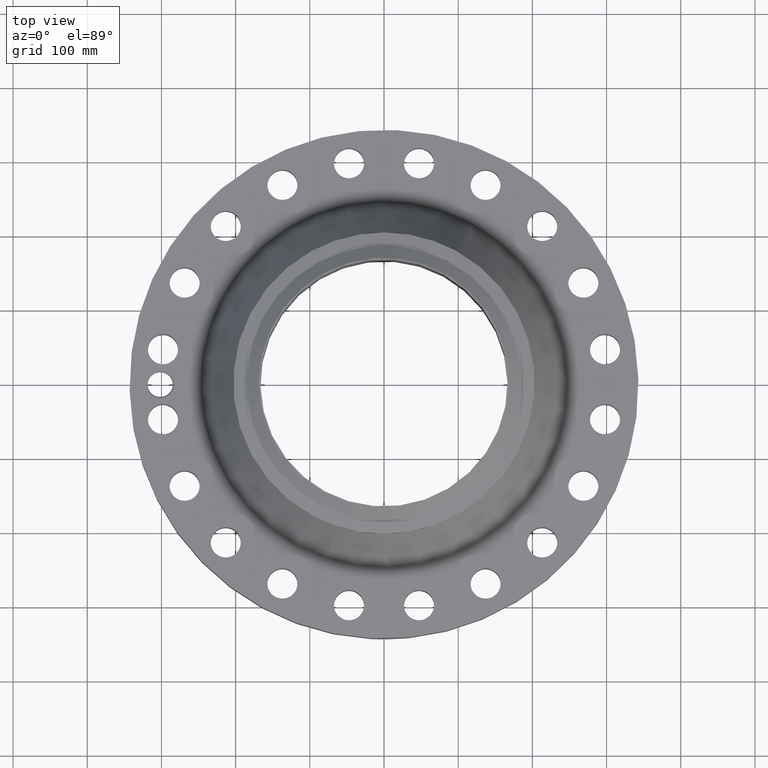
[diagram: clean part render]
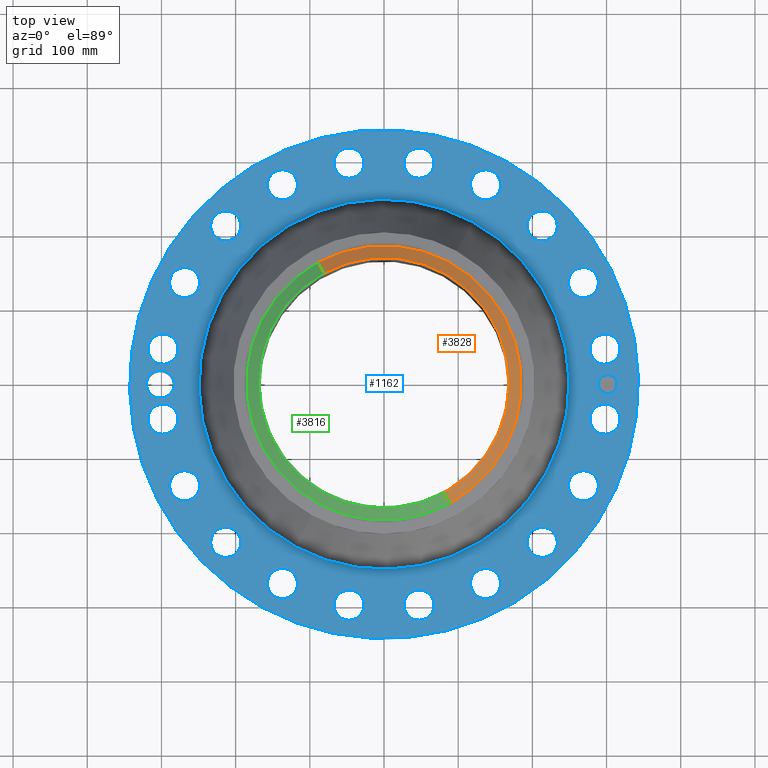
[diagram: same view with three faces highlighted in distinct colors, each labeled with its STEP entity id]
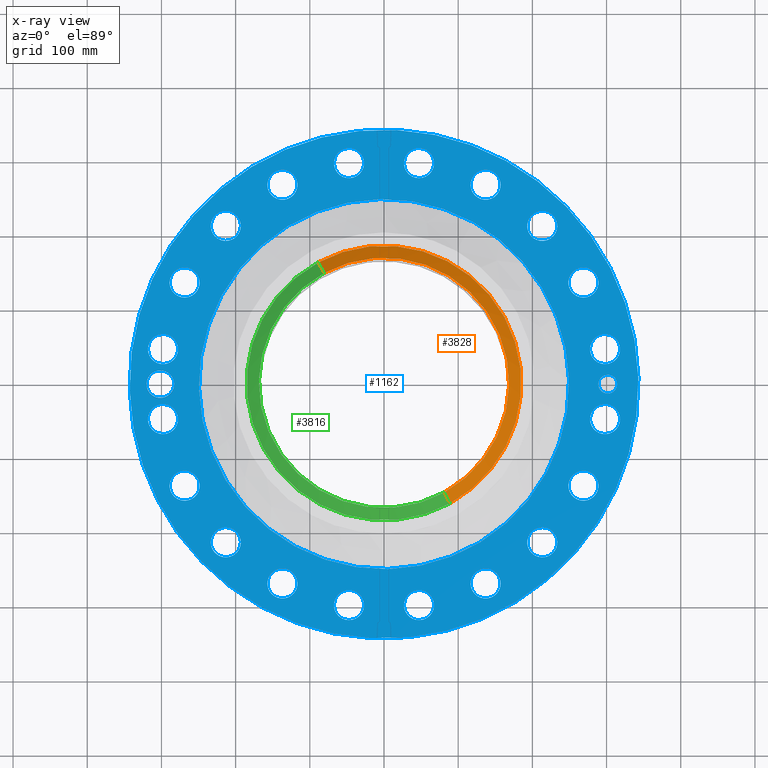
[diagram: x-ray of the same camera — body ghosted, the three highlighted faces saturated]
A machine part, top view with three faces highlighted in distinct colors.
The next image is the same camera in x-ray (body ghosted, the three faces saturated) — at least one of them is partly hidden behind the body in this view.
Their STEP definitions:

[orange] entity #3828 — the highlighted conical surface has half-angle 52.5 deg.
#2956=AXIS2_PLACEMENT_3D('Circle Axis2P3D',#2954,#2955,$) ;
#3789=AXIS2_PLACEMENT_3D('Cone Axis2P3D',#3786,#3787,#3788) ;
#3819=AXIS2_PLACEMENT_3D('Circle Axis2P3D',#3817,#3818,$) ;
#2954=CARTESIAN_POINT('Axis2P3D Location',(0.,0.,7.25000000003)) ;
#2958=CARTESIAN_POINT('Vertex',(3.18374042674,-5.82779776027,7.25000000003)) ;
#2960=CARTESIAN_POINT('Vertex',(-3.18374042674,5.82779776027,7.25000000003)) ;
#3786=CARTESIAN_POINT('Axis2P3D Location',(0.,0.,7.25000000003)) ;
#3791=CARTESIAN_POINT('Line Origine',(-3.33868172929,6.11141591218,7.00201437259)) ;
#3795=CARTESIAN_POINT('Vertex',(-3.49362303184,6.39503406408,6.75402874516)) ;
#3802=CARTESIAN_POINT('Vertex',(3.49362303184,-6.39503406408,6.75402874516)) ;
#3805=CARTESIAN_POINT('Line Origine',(3.33868172929,-6.11141591218,7.00201437259)) ;
#3817=CARTESIAN_POINT('Axis2P3D Location',(0.,0.,6.75402874516)) ;
#2955=DIRECTION('Axis2P3D Direction',(0.,0.,-0.0393700787402)) ;
#3787=DIRECTION('Axis2P3D Direction',(-0.,-0.,-0.0393700787402)) ;
#3788=DIRECTION('Axis2P3D XDirection',(-0.0188750212049,0.0345504945626,0.)) ;
#3792=DIRECTION('Vector Direction',(-0.014974561121,0.02741075027,-0.023966985394)) ;
#3806=DIRECTION('Vector Direction',(0.014974561121,-0.02741075027,-0.023966985394)) ;
#3818=DIRECTION('Axis2P3D Direction',(0.,0.,-0.0393700787402)) ;
#3793=VECTOR('Line Direction',#3792,0.0393700787402) ;
#3807=VECTOR('Line Direction',#3806,0.0393700787402) ;
#3823=ORIENTED_EDGE('',*,*,#2962,.F.) ;
#3824=ORIENTED_EDGE('',*,*,#3809,.T.) ;
#3825=ORIENTED_EDGE('',*,*,#3821,.T.) ;
#3826=ORIENTED_EDGE('',*,*,#3797,.F.) ;
#3828=ADVANCED_FACE('PartBody',(#3827),#3790,.T.) ;
#2957=CIRCLE('generated circle',#2956,6.64074015751) ;
#3820=CIRCLE('generated circle',#3819,7.28710248105) ;
#3790=CONICAL_SURFACE('Cone',#3789,6.64074015751,0.916297857297) ;
#2962=EDGE_CURVE('',#2959,#2961,#2957,.F.) ;
#3797=EDGE_CURVE('',#2961,#3796,#3794,.T.) ;
#3809=EDGE_CURVE('',#2959,#3803,#3808,.T.) ;
#3821=EDGE_CURVE('',#3803,#3796,#3820,.F.) ;
#3822=EDGE_LOOP('',(#3823,#3824,#3825,#3826)) ;
#3827=FACE_OUTER_BOUND('',#3822,.T.) ;
#3794=LINE('Line',#3791,#3793) ;
#3808=LINE('Line',#3805,#3807) ;
#2959=VERTEX_POINT('',#2958) ;
#2961=VERTEX_POINT('',#2960) ;
#3796=VERTEX_POINT('',#3795) ;
#3803=VERTEX_POINT('',#3802) ;

[blue] entity #1162 — the highlighted planar face has unit normal (0, 0, -1).
#58=AXIS2_PLACEMENT_3D('Circle Axis2P3D',#56,#57,$) ;
#614=AXIS2_PLACEMENT_3D('Circle Axis2P3D',#612,#613,$) ;
#714=AXIS2_PLACEMENT_3D('Plane Axis2P3D',#711,#712,#713) ;
#750=AXIS2_PLACEMENT_3D('Circle Axis2P3D',#748,#749,$) ;
#757=AXIS2_PLACEMENT_3D('Circle Axis2P3D',#755,#756,$) ;
#768=AXIS2_PLACEMENT_3D('Circle Axis2P3D',#766,#767,$) ;
#777=AXIS2_PLACEMENT_3D('Circle Axis2P3D',#775,#776,$) ;
#786=AXIS2_PLACEMENT_3D('Circle Axis2P3D',#784,#785,$) ;
#795=AXIS2_PLACEMENT_3D('Circle Axis2P3D',#793,#794,$) ;
#804=AXIS2_PLACEMENT_3D('Circle Axis2P3D',#802,#803,$) ;
#813=AXIS2_PLACEMENT_3D('Circle Axis2P3D',#811,#812,$) ;
#822=AXIS2_PLACEMENT_3D('Circle Axis2P3D',#820,#821,$) ;
#831=AXIS2_PLACEMENT_3D('Circle Axis2P3D',#829,#830,$) ;
#840=AXIS2_PLACEMENT_3D('Circle Axis2P3D',#838,#839,$) ;
#849=AXIS2_PLACEMENT_3D('Circle Axis2P3D',#847,#848,$) ;
#858=AXIS2_PLACEMENT_3D('Circle Axis2P3D',#856,#857,$) ;
#867=AXIS2_PLACEMENT_3D('Circle Axis2P3D',#865,#866,$) ;
#876=AXIS2_PLACEMENT_3D('Circle Axis2P3D',#874,#875,$) ;
#885=AXIS2_PLACEMENT_3D('Circle Axis2P3D',#883,#884,$) ;
#894=AXIS2_PLACEMENT_3D('Circle Axis2P3D',#892,#893,$) ;
#903=AXIS2_PLACEMENT_3D('Circle Axis2P3D',#901,#902,$) ;
#912=AXIS2_PLACEMENT_3D('Circle Axis2P3D',#910,#911,$) ;
#921=AXIS2_PLACEMENT_3D('Circle Axis2P3D',#919,#920,$) ;
#930=AXIS2_PLACEMENT_3D('Circle Axis2P3D',#928,#929,$) ;
#939=AXIS2_PLACEMENT_3D('Circle Axis2P3D',#937,#938,$) ;
#948=AXIS2_PLACEMENT_3D('Circle Axis2P3D',#946,#947,$) ;
#957=AXIS2_PLACEMENT_3D('Circle Axis2P3D',#955,#956,$) ;
#966=AXIS2_PLACEMENT_3D('Circle Axis2P3D',#964,#965,$) ;
#975=AXIS2_PLACEMENT_3D('Circle Axis2P3D',#973,#974,$) ;
#984=AXIS2_PLACEMENT_3D('Circle Axis2P3D',#982,#983,$) ;
#993=AXIS2_PLACEMENT_3D('Circle Axis2P3D',#991,#992,$) ;
#1002=AXIS2_PLACEMENT_3D('Circle Axis2P3D',#1000,#1001,$) ;
#1011=AXIS2_PLACEMENT_3D('Circle Axis2P3D',#1009,#1010,$) ;
#1020=AXIS2_PLACEMENT_3D('Circle Axis2P3D',#1018,#1019,$) ;
#1029=AXIS2_PLACEMENT_3D('Circle Axis2P3D',#1027,#1028,$) ;
#1038=AXIS2_PLACEMENT_3D('Circle Axis2P3D',#1036,#1037,$) ;
#1047=AXIS2_PLACEMENT_3D('Circle Axis2P3D',#1045,#1046,$) ;
#1056=AXIS2_PLACEMENT_3D('Circle Axis2P3D',#1054,#1055,$) ;
#1065=AXIS2_PLACEMENT_3D('Circle Axis2P3D',#1063,#1064,$) ;
#1074=AXIS2_PLACEMENT_3D('Circle Axis2P3D',#1072,#1073,$) ;
#1083=AXIS2_PLACEMENT_3D('Circle Axis2P3D',#1081,#1082,$) ;
#1092=AXIS2_PLACEMENT_3D('Circle Axis2P3D',#1090,#1091,$) ;
#1101=AXIS2_PLACEMENT_3D('Circle Axis2P3D',#1099,#1100,$) ;
#1110=AXIS2_PLACEMENT_3D('Circle Axis2P3D',#1108,#1109,$) ;
#1119=AXIS2_PLACEMENT_3D('Circle Axis2P3D',#1117,#1118,$) ;
#1128=AXIS2_PLACEMENT_3D('Circle Axis2P3D',#1126,#1127,$) ;
#1137=AXIS2_PLACEMENT_3D('Circle Axis2P3D',#1135,#1136,$) ;
#1146=AXIS2_PLACEMENT_3D('Circle Axis2P3D',#1144,#1145,$) ;
#1155=AXIS2_PLACEMENT_3D('Circle Axis2P3D',#1153,#1154,$) ;
#53=CARTESIAN_POINT('Vertex',(-6.47224477118,-11.8473645856,3.25000000001)) ;
#56=CARTESIAN_POINT('Axis2P3D Location',(0.,0.,3.25000000001)) ;
#60=CARTESIAN_POINT('Vertex',(6.47224477118,11.8473645856,3.25000000001)) ;
#612=CARTESIAN_POINT('Axis2P3D Location',(0.,0.,3.25000000001)) ;
#711=CARTESIAN_POINT('Axis2P3D Location',(0.,13.5000000001,3.25000000001)) ;
#721=CARTESIAN_POINT('Control Point',(-11.125,-2.23792987641E-015,3.25000000001)) ;
#722=CARTESIAN_POINT('Control Point',(-11.1272629409,0.0673684845965,3.25000000001)) ;
#723=CARTESIAN_POINT('Control Point',(-11.1370945386,0.134362663429,3.25000000001)) ;
#724=CARTESIAN_POINT('Control Point',(-11.1544410815,0.199838086166,3.25000000001)) ;
#725=CARTESIAN_POINT('Control Point',(-11.1934599868,0.299736404674,3.25000000001)) ;
#726=CARTESIAN_POINT('Control Point',(-11.2492750296,0.390416758413,3.25000000001)) ;
#727=CARTESIAN_POINT('Control Point',(-11.272188551,0.422593386226,3.25000000001)) ;
#728=CARTESIAN_POINT('Control Point',(-11.2971620339,0.453104323016,3.25000000001)) ;
#729=CARTESIAN_POINT('Control Point',(-11.3240316999,0.481779557687,3.25000000001)) ;
#730=CARTESIAN_POINT('Vertex',(-11.125,-2.23792987641E-015,3.25000000001)) ;
#732=CARTESIAN_POINT('Vertex',(-11.3240316999,0.481779557687,3.25000000001)) ;
#736=CARTESIAN_POINT('Control Point',(-11.125,2.23792987641E-015,3.25000000001)) ;
#737=CARTESIAN_POINT('Control Point',(-11.1272635562,-0.0673868031205,3.25000000001)) ;
#738=CARTESIAN_POINT('Control Point',(-11.1370998931,-0.134399095977,3.25000000001)) ;
#739=CARTESIAN_POINT('Control Point',(-11.1544454965,-0.19986948441,3.25000000001)) ;
#740=CARTESIAN_POINT('Control Point',(-11.1934799604,-0.299807339915,3.25000000001)) ;
#741=CARTESIAN_POINT('Control Point',(-11.2492922422,-0.390470875137,3.25000000001)) ;
#742=CARTESIAN_POINT('Control Point',(-11.2722346303,-0.422676190908,3.25000000001)) ;
#743=CARTESIAN_POINT('Control Point',(-11.2972359539,-0.453206227148,3.25000000001)) ;
#744=CARTESIAN_POINT('Control Point',(-11.3241309361,-0.481893021715,3.25000000001)) ;
#745=CARTESIAN_POINT('Vertex',(-11.3241309361,-0.481893021715,3.25000000001)) ;
#748=CARTESIAN_POINT('Axis2P3D Location',(-11.875,-2.23792987641E-015,3.25000000001)) ;
#752=CARTESIAN_POINT('Vertex',(-12.5173026771,0.350891551706,3.25000000001)) ;
#755=CARTESIAN_POINT('Axis2P3D Location',(-11.875,-2.23792987641E-015,3.25000000001)) ;
#766=CARTESIAN_POINT('Axis2P3D Location',(11.7287990446,-1.85765927236,3.25000000001)) ;
#770=CARTESIAN_POINT('Vertex',(11.0267329951,-1.47411884148,3.25000000001)) ;
#772=CARTESIAN_POINT('Vertex',(12.4308650941,-2.24119970325,3.25000000001)) ;
#775=CARTESIAN_POINT('Axis2P3D Location',(11.7287990446,-1.85765927236,3.25000000001)) ;
#784=CARTESIAN_POINT('Axis2P3D Location',(0.,0.,3.25000000001)) ;
#788=CARTESIAN_POINT('Vertex',(-4.70813805848,-8.61818890818,3.25000000001)) ;
#790=CARTESIAN_POINT('Vertex',(4.70813805848,8.61818890818,3.25000000001)) ;
#793=CARTESIAN_POINT('Axis2P3D Location',(0.,0.,3.25000000001)) ;
#802=CARTESIAN_POINT('Axis2P3D Location',(10.5807024748,-5.39113718443,3.25000000001)) ;
#806=CARTESIAN_POINT('Vertex',(11.1298864549,-5.97285615096,3.25000000001)) ;
#808=CARTESIAN_POINT('Vertex',(10.0315184947,-4.8094182179,3.25000000001)) ;
#811=CARTESIAN_POINT('Axis2P3D Location',(10.5807024748,-5.39113718443,3.25000000001)) ;
#820=CARTESIAN_POINT('Axis2P3D Location',(8.39689302662,-8.39689302662,3.25000000001)) ;
#824=CARTESIAN_POINT('Vertex',(8.73943698292,-9.11984782328,3.25000000001)) ;
#826=CARTESIAN_POINT('Vertex',(8.05434907032,-7.67393822997,3.25000000001)) ;
#829=CARTESIAN_POINT('Axis2P3D Location',(8.39689302662,-8.39689302662,3.25000000001)) ;
#838=CARTESIAN_POINT('Axis2P3D Location',(5.39113718443,-10.5807024748,3.25000000001)) ;
#842=CARTESIAN_POINT('Vertex',(5.49351052785,-11.3741252489,3.25000000001)) ;
#844=CARTESIAN_POINT('Vertex',(5.288763841,-9.78727970062,3.25000000001)) ;
#847=CARTESIAN_POINT('Axis2P3D Location',(5.39113718443,-10.5807024748,3.25000000001)) ;
#856=CARTESIAN_POINT('Axis2P3D Location',(1.85765927236,-11.7287990446,3.25000000001)) ;
#860=CARTESIAN_POINT('Vertex',(1.70984098678,-12.515024047,3.25000000001)) ;
#862=CARTESIAN_POINT('Vertex',(2.00547755794,-10.9425740422,3.25000000001)) ;
#865=CARTESIAN_POINT('Axis2P3D Location',(1.85765927236,-11.7287990446,3.25000000001)) ;
#874=CARTESIAN_POINT('Axis2P3D Location',(-1.85765927236,-11.7287990446,3.25000000001)) ;
#878=CARTESIAN_POINT('Vertex',(-2.24119970325,-12.4308650941,3.25000000001)) ;
#880=CARTESIAN_POINT('Vertex',(-1.47411884148,-11.0267329951,3.25000000001)) ;
#883=CARTESIAN_POINT('Axis2P3D Location',(-1.85765927236,-11.7287990446,3.25000000001)) ;
#892=CARTESIAN_POINT('Axis2P3D Location',(-5.39113718443,-10.5807024748,3.25000000001)) ;
#896=CARTESIAN_POINT('Vertex',(-5.97285615096,-11.1298864549,3.25000000001)) ;
#898=CARTESIAN_POINT('Vertex',(-4.8094182179,-10.0315184947,3.25000000001)) ;
#901=CARTESIAN_POINT('Axis2P3D Location',(-5.39113718443,-10.5807024748,3.25000000001)) ;
#910=CARTESIAN_POINT('Axis2P3D Location',(-8.39689302662,-8.39689302662,3.25000000001)) ;
#914=CARTESIAN_POINT('Vertex',(-9.11984782328,-8.73943698292,3.25000000001)) ;
#916=CARTESIAN_POINT('Vertex',(-7.67393822997,-8.05434907032,3.25000000001)) ;
#919=CARTESIAN_POINT('Axis2P3D Location',(-8.39689302662,-8.39689302662,3.25000000001)) ;
#928=CARTESIAN_POINT('Axis2P3D Location',(-10.5807024748,-5.39113718443,3.25000000001)) ;
#932=CARTESIAN_POINT('Vertex',(-11.3741252489,-5.49351052785,3.25000000001)) ;
#934=CARTESIAN_POINT('Vertex',(-9.78727970062,-5.288763841,3.25000000001)) ;
#937=CARTESIAN_POINT('Axis2P3D Location',(-10.5807024748,-5.39113718443,3.25000000001)) ;
#946=CARTESIAN_POINT('Axis2P3D Location',(-11.7287990446,-1.85765927236,3.25000000001)) ;
#950=CARTESIAN_POINT('Vertex',(-12.515024047,-1.70984098678,3.25000000001)) ;
#952=CARTESIAN_POINT('Vertex',(-10.9425740422,-2.00547755794,3.25000000001)) ;
#955=CARTESIAN_POINT('Axis2P3D Location',(-11.7287990446,-1.85765927236,3.25000000001)) ;
#964=CARTESIAN_POINT('Axis2P3D Location',(-11.7287990446,1.85765927236,3.25000000001)) ;
#968=CARTESIAN_POINT('Vertex',(-12.4308650941,2.24119970325,3.25000000001)) ;
#970=CARTESIAN_POINT('Vertex',(-11.0267329951,1.47411884148,3.25000000001)) ;
#973=CARTESIAN_POINT('Axis2P3D Location',(-11.7287990446,1.85765927236,3.25000000001)) ;
#982=CARTESIAN_POINT('Axis2P3D Location',(-10.5807024748,5.39113718443,3.25000000001)) ;
#986=CARTESIAN_POINT('Vertex',(-11.1298864549,5.97285615096,3.25000000001)) ;
#988=CARTESIAN_POINT('Vertex',(-10.0315184947,4.8094182179,3.25000000001)) ;
#991=CARTESIAN_POINT('Axis2P3D Location',(-10.5807024748,5.39113718443,3.25000000001)) ;
#1000=CARTESIAN_POINT('Axis2P3D Location',(-8.39689302662,8.39689302662,3.25000000001)) ;
#1004=CARTESIAN_POINT('Vertex',(-8.73943698292,9.11984782328,3.25000000001)) ;
#1006=CARTESIAN_POINT('Vertex',(-8.05434907032,7.67393822997,3.25000000001)) ;
#1009=CARTESIAN_POINT('Axis2P3D Location',(-8.39689302662,8.39689302662,3.25000000001)) ;
#1018=CARTESIAN_POINT('Axis2P3D Location',(-5.39113718443,10.5807024748,3.25000000001)) ;
#1022=CARTESIAN_POINT('Vertex',(-5.49351052785,11.3741252489,3.25000000001)) ;
#1024=CARTESIAN_POINT('Vertex',(-5.288763841,9.78727970062,3.25000000001)) ;
#1027=CARTESIAN_POINT('Axis2P3D Location',(-5.39113718443,10.5807024748,3.25000000001)) ;
#1036=CARTESIAN_POINT('Axis2P3D Location',(-1.85765927236,11.7287990446,3.25000000001)) ;
#1040=CARTESIAN_POINT('Vertex',(-1.70984098678,12.515024047,3.25000000001)) ;
#1042=CARTESIAN_POINT('Vertex',(-2.00547755794,10.9425740422,3.25000000001)) ;
#1045=CARTESIAN_POINT('Axis2P3D Location',(-1.85765927236,11.7287990446,3.25000000001)) ;
#1054=CARTESIAN_POINT('Axis2P3D Location',(1.85765927236,11.7287990446,3.25000000001)) ;
#1058=CARTESIAN_POINT('Vertex',(2.24119970325,12.4308650941,3.25000000001)) ;
#1060=CARTESIAN_POINT('Vertex',(1.47411884148,11.0267329951,3.25000000001)) ;
#1063=CARTESIAN_POINT('Axis2P3D Location',(1.85765927236,11.7287990446,3.25000000001)) ;
#1072=CARTESIAN_POINT('Axis2P3D Location',(5.39113718443,10.5807024748,3.25000000001)) ;
#1076=CARTESIAN_POINT('Vertex',(5.97285615096,11.1298864549,3.25000000001)) ;
#1078=CARTESIAN_POINT('Vertex',(4.8094182179,10.0315184947,3.25000000001)) ;
#1081=CARTESIAN_POINT('Axis2P3D Location',(5.39113718443,10.5807024748,3.25000000001)) ;
#1090=CARTESIAN_POINT('Axis2P3D Location',(8.39689302662,8.39689302662,3.25000000001)) ;
#1094=CARTESIAN_POINT('Vertex',(9.11984782328,8.73943698292,3.25000000001)) ;
#1096=CARTESIAN_POINT('Vertex',(7.67393822997,8.05434907032,3.25000000001)) ;
#1099=CARTESIAN_POINT('Axis2P3D Location',(8.39689302662,8.39689302662,3.25000000001)) ;
#1108=CARTESIAN_POINT('Axis2P3D Location',(10.5807024748,5.39113718443,3.25000000001)) ;
#1112=CARTESIAN_POINT('Vertex',(11.3741252489,5.49351052785,3.25000000001)) ;
#1114=CARTESIAN_POINT('Vertex',(9.78727970062,5.288763841,3.25000000001)) ;
#1117=CARTESIAN_POINT('Axis2P3D Location',(10.5807024748,5.39113718443,3.25000000001)) ;
#1126=CARTESIAN_POINT('Axis2P3D Location',(11.7287990446,1.85765927236,3.25000000001)) ;
#1130=CARTESIAN_POINT('Vertex',(12.515024047,1.70984098678,3.25000000001)) ;
#1132=CARTESIAN_POINT('Vertex',(10.9425740422,2.00547755794,3.25000000001)) ;
#1135=CARTESIAN_POINT('Axis2P3D Location',(11.7287990446,1.85765927236,3.25000000001)) ;
#1144=CARTESIAN_POINT('Axis2P3D Location',(11.875,0.,3.25000000001)) ;
#1148=CARTESIAN_POINT('Vertex',(11.875,0.499999995002,3.25000000001)) ;
#1150=CARTESIAN_POINT('Vertex',(11.875,-0.499999995002,3.25000000001)) ;
#1153=CARTESIAN_POINT('Axis2P3D Location',(11.875,0.,3.25000000001)) ;
#57=DIRECTION('Axis2P3D Direction',(0.,0.,-0.0393700787402)) ;
#613=DIRECTION('Axis2P3D Direction',(0.,0.,-0.0393700787402)) ;
#712=DIRECTION('Axis2P3D Direction',(0.,0.,-0.0393700787402)) ;
#713=DIRECTION('Axis2P3D XDirection',(0.0393700787402,0.,0.)) ;
#749=DIRECTION('Axis2P3D Direction',(0.,0.,-0.0393700787402)) ;
#756=DIRECTION('Axis2P3D Direction',(0.,0.,-0.0393700787402)) ;
#767=DIRECTION('Axis2P3D Direction',(0.,0.,-0.0393700787402)) ;
#776=DIRECTION('Axis2P3D Direction',(0.,0.,-0.0393700787402)) ;
#785=DIRECTION('Axis2P3D Direction',(0.,0.,-0.0393700787402)) ;
#794=DIRECTION('Axis2P3D Direction',(0.,0.,-0.0393700787402)) ;
#803=DIRECTION('Axis2P3D Direction',(0.,0.,-0.0393700787402)) ;
#812=DIRECTION('Axis2P3D Direction',(0.,0.,-0.0393700787402)) ;
#821=DIRECTION('Axis2P3D Direction',(0.,0.,-0.0393700787402)) ;
#830=DIRECTION('Axis2P3D Direction',(0.,0.,-0.0393700787402)) ;
#839=DIRECTION('Axis2P3D Direction',(0.,0.,-0.0393700787402)) ;
#848=DIRECTION('Axis2P3D Direction',(0.,0.,-0.0393700787402)) ;
#857=DIRECTION('Axis2P3D Direction',(0.,0.,-0.0393700787402)) ;
#866=DIRECTION('Axis2P3D Direction',(0.,0.,-0.0393700787402)) ;
#875=DIRECTION('Axis2P3D Direction',(0.,0.,-0.0393700787402)) ;
#884=DIRECTION('Axis2P3D Direction',(0.,0.,-0.0393700787402)) ;
#893=DIRECTION('Axis2P3D Direction',(0.,0.,-0.0393700787402)) ;
#902=DIRECTION('Axis2P3D Direction',(0.,0.,-0.0393700787402)) ;
#911=DIRECTION('Axis2P3D Direction',(0.,0.,-0.0393700787402)) ;
#920=DIRECTION('Axis2P3D Direction',(0.,0.,-0.0393700787402)) ;
#929=DIRECTION('Axis2P3D Direction',(0.,0.,-0.0393700787402)) ;
#938=DIRECTION('Axis2P3D Direction',(0.,0.,-0.0393700787402)) ;
#947=DIRECTION('Axis2P3D Direction',(0.,0.,-0.0393700787402)) ;
#956=DIRECTION('Axis2P3D Direction',(0.,0.,-0.0393700787402)) ;
#965=DIRECTION('Axis2P3D Direction',(0.,0.,-0.0393700787402)) ;
#974=DIRECTION('Axis2P3D Direction',(0.,0.,-0.0393700787402)) ;
#983=DIRECTION('Axis2P3D Direction',(0.,0.,-0.0393700787402)) ;
#992=DIRECTION('Axis2P3D Direction',(0.,0.,-0.0393700787402)) ;
#1001=DIRECTION('Axis2P3D Direction',(0.,0.,-0.0393700787402)) ;
#1010=DIRECTION('Axis2P3D Direction',(0.,0.,-0.0393700787402)) ;
#1019=DIRECTION('Axis2P3D Direction',(0.,0.,-0.0393700787402)) ;
#1028=DIRECTION('Axis2P3D Direction',(0.,0.,-0.0393700787402)) ;
#1037=DIRECTION('Axis2P3D Direction',(0.,0.,-0.0393700787402)) ;
#1046=DIRECTION('Axis2P3D Direction',(0.,0.,-0.0393700787402)) ;
#1055=DIRECTION('Axis2P3D Direction',(0.,0.,-0.0393700787402)) ;
#1064=DIRECTION('Axis2P3D Direction',(0.,0.,-0.0393700787402)) ;
#1073=DIRECTION('Axis2P3D Direction',(0.,0.,-0.0393700787402)) ;
#1082=DIRECTION('Axis2P3D Direction',(0.,0.,-0.0393700787402)) ;
#1091=DIRECTION('Axis2P3D Direction',(0.,0.,-0.0393700787402)) ;
#1100=DIRECTION('Axis2P3D Direction',(0.,0.,-0.0393700787402)) ;
#1109=DIRECTION('Axis2P3D Direction',(0.,0.,-0.0393700787402)) ;
#1118=DIRECTION('Axis2P3D Direction',(0.,0.,-0.0393700787402)) ;
#1127=DIRECTION('Axis2P3D Direction',(0.,0.,-0.0393700787402)) ;
#1136=DIRECTION('Axis2P3D Direction',(0.,0.,-0.0393700787402)) ;
#1145=DIRECTION('Axis2P3D Direction',(0.,0.,-0.0393700787402)) ;
#1154=DIRECTION('Axis2P3D Direction',(0.,0.,-0.0393700787402)) ;
#717=ORIENTED_EDGE('',*,*,#616,.F.) ;
#718=ORIENTED_EDGE('',*,*,#62,.F.) ;
#761=ORIENTED_EDGE('',*,*,#734,.F.) ;
#762=ORIENTED_EDGE('',*,*,#747,.T.) ;
#763=ORIENTED_EDGE('',*,*,#754,.T.) ;
#764=ORIENTED_EDGE('',*,*,#759,.T.) ;
#781=ORIENTED_EDGE('',*,*,#774,.T.) ;
#782=ORIENTED_EDGE('',*,*,#779,.T.) ;
#799=ORIENTED_EDGE('',*,*,#792,.T.) ;
#800=ORIENTED_EDGE('',*,*,#797,.T.) ;
#817=ORIENTED_EDGE('',*,*,#810,.T.) ;
#818=ORIENTED_EDGE('',*,*,#815,.T.) ;
#835=ORIENTED_EDGE('',*,*,#828,.T.) ;
#836=ORIENTED_EDGE('',*,*,#833,.T.) ;
#853=ORIENTED_EDGE('',*,*,#846,.T.) ;
#854=ORIENTED_EDGE('',*,*,#851,.T.) ;
#871=ORIENTED_EDGE('',*,*,#864,.T.) ;
#872=ORIENTED_EDGE('',*,*,#869,.T.) ;
#889=ORIENTED_EDGE('',*,*,#882,.T.) ;
#890=ORIENTED_EDGE('',*,*,#887,.T.) ;
#907=ORIENTED_EDGE('',*,*,#900,.T.) ;
#908=ORIENTED_EDGE('',*,*,#905,.T.) ;
#925=ORIENTED_EDGE('',*,*,#918,.T.) ;
#926=ORIENTED_EDGE('',*,*,#923,.T.) ;
#943=ORIENTED_EDGE('',*,*,#936,.T.) ;
#944=ORIENTED_EDGE('',*,*,#941,.T.) ;
#961=ORIENTED_EDGE('',*,*,#954,.T.) ;
#962=ORIENTED_EDGE('',*,*,#959,.T.) ;
#979=ORIENTED_EDGE('',*,*,#972,.T.) ;
#980=ORIENTED_EDGE('',*,*,#977,.T.) ;
#997=ORIENTED_EDGE('',*,*,#990,.T.) ;
#998=ORIENTED_EDGE('',*,*,#995,.T.) ;
#1015=ORIENTED_EDGE('',*,*,#1008,.T.) ;
#1016=ORIENTED_EDGE('',*,*,#1013,.T.) ;
#1033=ORIENTED_EDGE('',*,*,#1026,.T.) ;
#1034=ORIENTED_EDGE('',*,*,#1031,.T.) ;
#1051=ORIENTED_EDGE('',*,*,#1044,.T.) ;
#1052=ORIENTED_EDGE('',*,*,#1049,.T.) ;
#1069=ORIENTED_EDGE('',*,*,#1062,.T.) ;
#1070=ORIENTED_EDGE('',*,*,#1067,.T.) ;
#1087=ORIENTED_EDGE('',*,*,#1080,.T.) ;
#1088=ORIENTED_EDGE('',*,*,#1085,.T.) ;
#1105=ORIENTED_EDGE('',*,*,#1098,.T.) ;
#1106=ORIENTED_EDGE('',*,*,#1103,.T.) ;
#1123=ORIENTED_EDGE('',*,*,#1116,.T.) ;
#1124=ORIENTED_EDGE('',*,*,#1121,.T.) ;
#1141=ORIENTED_EDGE('',*,*,#1134,.T.) ;
#1142=ORIENTED_EDGE('',*,*,#1139,.T.) ;
#1159=ORIENTED_EDGE('',*,*,#1152,.T.) ;
#1160=ORIENTED_EDGE('',*,*,#1157,.T.) ;
#765=FACE_BOUND('',#760,.T.) ;
#783=FACE_BOUND('',#780,.T.) ;
#801=FACE_BOUND('',#798,.T.) ;
#819=FACE_BOUND('',#816,.T.) ;
#837=FACE_BOUND('',#834,.T.) ;
#855=FACE_BOUND('',#852,.T.) ;
#873=FACE_BOUND('',#870,.T.) ;
#891=FACE_BOUND('',#888,.T.) ;
#909=FACE_BOUND('',#906,.T.) ;
#927=FACE_BOUND('',#924,.T.) ;
#945=FACE_BOUND('',#942,.T.) ;
#963=FACE_BOUND('',#960,.T.) ;
#981=FACE_BOUND('',#978,.T.) ;
#999=FACE_BOUND('',#996,.T.) ;
#1017=FACE_BOUND('',#1014,.T.) ;
#1035=FACE_BOUND('',#1032,.T.) ;
#1053=FACE_BOUND('',#1050,.T.) ;
#1071=FACE_BOUND('',#1068,.T.) ;
#1089=FACE_BOUND('',#1086,.T.) ;
#1107=FACE_BOUND('',#1104,.T.) ;
#1125=FACE_BOUND('',#1122,.T.) ;
#1143=FACE_BOUND('',#1140,.T.) ;
#1161=FACE_BOUND('',#1158,.T.) ;
#1162=ADVANCED_FACE('PartBody',(#719,#765,#783,#801,#819,#837,#855,#873,#891,#909,#927,#945,#963,#981,#999,#1017,#1035,#1053,#1071,#1089,#1107,#1125,#1143,#1161),#715,.F.) ;
#720=B_SPLINE_CURVE_WITH_KNOTS('',5,(#721,#722,#723,#724,#725,#726,#727,#728,#729),.UNSPECIFIED.,.F.,.U.,(6,3,6),(0.,11.8009726188,18.7642906986),.UNSPECIFIED.) ;
#735=B_SPLINE_CURVE_WITH_KNOTS('',5,(#736,#737,#738,#739,#740,#741,#742,#743,#744),.UNSPECIFIED.,.F.,.U.,(6,3,6),(0.,11.8041814841,18.784609229),.UNSPECIFIED.) ;
#59=CIRCLE('generated circle',#58,13.5000000001) ;
#615=CIRCLE('generated circle',#614,13.5000000001) ;
#751=CIRCLE('generated circle',#750,0.731900000003) ;
#758=CIRCLE('generated circle',#757,0.731900000003) ;
#769=CIRCLE('generated circle',#768,0.800000000003) ;
#778=CIRCLE('generated circle',#777,0.800000000003) ;
#787=CIRCLE('generated circle',#786,9.82037392541) ;
#796=CIRCLE('generated circle',#795,9.82037392541) ;
#805=CIRCLE('generated circle',#804,0.800000000003) ;
#814=CIRCLE('generated circle',#813,0.800000000003) ;
#823=CIRCLE('generated circle',#822,0.800000000003) ;
#832=CIRCLE('generated circle',#831,0.800000000003) ;
#841=CIRCLE('generated circle',#840,0.800000000003) ;
#850=CIRCLE('generated circle',#849,0.800000000003) ;
#859=CIRCLE('generated circle',#858,0.800000000003) ;
#868=CIRCLE('generated circle',#867,0.800000000003) ;
#877=CIRCLE('generated circle',#876,0.800000000003) ;
#886=CIRCLE('generated circle',#885,0.800000000003) ;
#895=CIRCLE('generated circle',#894,0.800000000003) ;
#904=CIRCLE('generated circle',#903,0.800000000003) ;
#913=CIRCLE('generated circle',#912,0.800000000003) ;
#922=CIRCLE('generated circle',#921,0.800000000003) ;
#931=CIRCLE('generated circle',#930,0.800000000003) ;
#940=CIRCLE('generated circle',#939,0.800000000003) ;
#949=CIRCLE('generated circle',#948,0.800000000003) ;
#958=CIRCLE('generated circle',#957,0.800000000003) ;
#967=CIRCLE('generated circle',#966,0.800000000003) ;
#976=CIRCLE('generated circle',#975,0.800000000003) ;
#985=CIRCLE('generated circle',#984,0.800000000003) ;
#994=CIRCLE('generated circle',#993,0.800000000003) ;
#1003=CIRCLE('generated circle',#1002,0.800000000003) ;
#1012=CIRCLE('generated circle',#1011,0.800000000003) ;
#1021=CIRCLE('generated circle',#1020,0.800000000003) ;
#1030=CIRCLE('generated circle',#1029,0.800000000003) ;
#1039=CIRCLE('generated circle',#1038,0.800000000003) ;
#1048=CIRCLE('generated circle',#1047,0.800000000003) ;
#1057=CIRCLE('generated circle',#1056,0.800000000003) ;
#1066=CIRCLE('generated circle',#1065,0.800000000003) ;
#1075=CIRCLE('generated circle',#1074,0.800000000003) ;
#1084=CIRCLE('generated circle',#1083,0.800000000003) ;
#1093=CIRCLE('generated circle',#1092,0.800000000003) ;
#1102=CIRCLE('generated circle',#1101,0.800000000003) ;
#1111=CIRCLE('generated circle',#1110,0.800000000003) ;
#1120=CIRCLE('generated circle',#1119,0.800000000003) ;
#1129=CIRCLE('generated circle',#1128,0.800000000003) ;
#1138=CIRCLE('generated circle',#1137,0.800000000003) ;
#1147=CIRCLE('generated circle',#1146,0.499999995002) ;
#1156=CIRCLE('generated circle',#1155,0.499999995002) ;
#62=EDGE_CURVE('',#54,#61,#59,.T.) ;
#616=EDGE_CURVE('',#61,#54,#615,.T.) ;
#734=EDGE_CURVE('',#731,#733,#720,.T.) ;
#747=EDGE_CURVE('',#731,#746,#735,.T.) ;
#754=EDGE_CURVE('',#746,#753,#751,.T.) ;
#759=EDGE_CURVE('',#753,#733,#758,.T.) ;
#774=EDGE_CURVE('',#771,#773,#769,.T.) ;
#779=EDGE_CURVE('',#773,#771,#778,.T.) ;
#792=EDGE_CURVE('',#789,#791,#787,.T.) ;
#797=EDGE_CURVE('',#791,#789,#796,.T.) ;
#810=EDGE_CURVE('',#807,#809,#805,.T.) ;
#815=EDGE_CURVE('',#809,#807,#814,.T.) ;
#828=EDGE_CURVE('',#825,#827,#823,.T.) ;
#833=EDGE_CURVE('',#827,#825,#832,.T.) ;
#846=EDGE_CURVE('',#843,#845,#841,.T.) ;
#851=EDGE_CURVE('',#845,#843,#850,.T.) ;
#864=EDGE_CURVE('',#861,#863,#859,.T.) ;
#869=EDGE_CURVE('',#863,#861,#868,.T.) ;
#882=EDGE_CURVE('',#879,#881,#877,.T.) ;
#887=EDGE_CURVE('',#881,#879,#886,.T.) ;
#900=EDGE_CURVE('',#897,#899,#895,.T.) ;
#905=EDGE_CURVE('',#899,#897,#904,.T.) ;
#918=EDGE_CURVE('',#915,#917,#913,.T.) ;
#923=EDGE_CURVE('',#917,#915,#922,.T.) ;
#936=EDGE_CURVE('',#933,#935,#931,.T.) ;
#941=EDGE_CURVE('',#935,#933,#940,.T.) ;
#954=EDGE_CURVE('',#951,#953,#949,.T.) ;
#959=EDGE_CURVE('',#953,#951,#958,.T.) ;
#972=EDGE_CURVE('',#969,#971,#967,.T.) ;
#977=EDGE_CURVE('',#971,#969,#976,.T.) ;
#990=EDGE_CURVE('',#987,#989,#985,.T.) ;
#995=EDGE_CURVE('',#989,#987,#994,.T.) ;
#1008=EDGE_CURVE('',#1005,#1007,#1003,.T.) ;
#1013=EDGE_CURVE('',#1007,#1005,#1012,.T.) ;
#1026=EDGE_CURVE('',#1023,#1025,#1021,.T.) ;
#1031=EDGE_CURVE('',#1025,#1023,#1030,.T.) ;
#1044=EDGE_CURVE('',#1041,#1043,#1039,.T.) ;
#1049=EDGE_CURVE('',#1043,#1041,#1048,.T.) ;
#1062=EDGE_CURVE('',#1059,#1061,#1057,.T.) ;
#1067=EDGE_CURVE('',#1061,#1059,#1066,.T.) ;
#1080=EDGE_CURVE('',#1077,#1079,#1075,.T.) ;
#1085=EDGE_CURVE('',#1079,#1077,#1084,.T.) ;
#1098=EDGE_CURVE('',#1095,#1097,#1093,.T.) ;
#1103=EDGE_CURVE('',#1097,#1095,#1102,.T.) ;
#1116=EDGE_CURVE('',#1113,#1115,#1111,.T.) ;
#1121=EDGE_CURVE('',#1115,#1113,#1120,.T.) ;
#1134=EDGE_CURVE('',#1131,#1133,#1129,.T.) ;
#1139=EDGE_CURVE('',#1133,#1131,#1138,.T.) ;
#1152=EDGE_CURVE('',#1149,#1151,#1147,.T.) ;
#1157=EDGE_CURVE('',#1151,#1149,#1156,.T.) ;
#716=EDGE_LOOP('',(#717,#718)) ;
#760=EDGE_LOOP('',(#761,#762,#763,#764)) ;
#780=EDGE_LOOP('',(#781,#782)) ;
#798=EDGE_LOOP('',(#799,#800)) ;
#816=EDGE_LOOP('',(#817,#818)) ;
#834=EDGE_LOOP('',(#835,#836)) ;
#852=EDGE_LOOP('',(#853,#854)) ;
#870=EDGE_LOOP('',(#871,#872)) ;
#888=EDGE_LOOP('',(#889,#890)) ;
#906=EDGE_LOOP('',(#907,#908)) ;
#924=EDGE_LOOP('',(#925,#926)) ;
#942=EDGE_LOOP('',(#943,#944)) ;
#960=EDGE_LOOP('',(#961,#962)) ;
#978=EDGE_LOOP('',(#979,#980)) ;
#996=EDGE_LOOP('',(#997,#998)) ;
#1014=EDGE_LOOP('',(#1015,#1016)) ;
#1032=EDGE_LOOP('',(#1033,#1034)) ;
#1050=EDGE_LOOP('',(#1051,#1052)) ;
#1068=EDGE_LOOP('',(#1069,#1070)) ;
#1086=EDGE_LOOP('',(#1087,#1088)) ;
#1104=EDGE_LOOP('',(#1105,#1106)) ;
#1122=EDGE_LOOP('',(#1123,#1124)) ;
#1140=EDGE_LOOP('',(#1141,#1142)) ;
#1158=EDGE_LOOP('',(#1159,#1160)) ;
#719=FACE_OUTER_BOUND('',#716,.T.) ;
#715=PLANE('',#714) ;
#54=VERTEX_POINT('',#53) ;
#61=VERTEX_POINT('',#60) ;
#731=VERTEX_POINT('',#730) ;
#733=VERTEX_POINT('',#732) ;
#746=VERTEX_POINT('',#745) ;
#753=VERTEX_POINT('',#752) ;
#771=VERTEX_POINT('',#770) ;
#773=VERTEX_POINT('',#772) ;
#789=VERTEX_POINT('',#788) ;
#791=VERTEX_POINT('',#790) ;
#807=VERTEX_POINT('',#806) ;
#809=VERTEX_POINT('',#808) ;
#825=VERTEX_POINT('',#824) ;
#827=VERTEX_POINT('',#826) ;
#843=VERTEX_POINT('',#842) ;
#845=VERTEX_POINT('',#844) ;
#861=VERTEX_POINT('',#860) ;
#863=VERTEX_POINT('',#862) ;
#879=VERTEX_POINT('',#878) ;
#881=VERTEX_POINT('',#880) ;
#897=VERTEX_POINT('',#896) ;
#899=VERTEX_POINT('',#898) ;
#915=VERTEX_POINT('',#914) ;
#917=VERTEX_POINT('',#916) ;
#933=VERTEX_POINT('',#932) ;
#935=VERTEX_POINT('',#934) ;
#951=VERTEX_POINT('',#950) ;
#953=VERTEX_POINT('',#952) ;
#969=VERTEX_POINT('',#968) ;
#971=VERTEX_POINT('',#970) ;
#987=VERTEX_POINT('',#986) ;
#989=VERTEX_POINT('',#988) ;
#1005=VERTEX_POINT('',#1004) ;
#1007=VERTEX_POINT('',#1006) ;
#1023=VERTEX_POINT('',#1022) ;
#1025=VERTEX_POINT('',#1024) ;
#1041=VERTEX_POINT('',#1040) ;
#1043=VERTEX_POINT('',#1042) ;
#1059=VERTEX_POINT('',#1058) ;
#1061=VERTEX_POINT('',#1060) ;
#1077=VERTEX_POINT('',#1076) ;
#1079=VERTEX_POINT('',#1078) ;
#1095=VERTEX_POINT('',#1094) ;
#1097=VERTEX_POINT('',#1096) ;
#1113=VERTEX_POINT('',#1112) ;
#1115=VERTEX_POINT('',#1114) ;
#1131=VERTEX_POINT('',#1130) ;
#1133=VERTEX_POINT('',#1132) ;
#1149=VERTEX_POINT('',#1148) ;
#1151=VERTEX_POINT('',#1150) ;

[green] entity #3816 — the highlighted conical surface has half-angle 52.5 deg.
#2965=AXIS2_PLACEMENT_3D('Circle Axis2P3D',#2963,#2964,$) ;
#3789=AXIS2_PLACEMENT_3D('Cone Axis2P3D',#3786,#3787,#3788) ;
#3800=AXIS2_PLACEMENT_3D('Circle Axis2P3D',#3798,#3799,$) ;
#2958=CARTESIAN_POINT('Vertex',(3.18374042674,-5.82779776027,7.25000000003)) ;
#2960=CARTESIAN_POINT('Vertex',(-3.18374042674,5.82779776027,7.25000000003)) ;
#2963=CARTESIAN_POINT('Axis2P3D Location',(0.,0.,7.25000000003)) ;
#3786=CARTESIAN_POINT('Axis2P3D Location',(0.,0.,7.25000000003)) ;
#3791=CARTESIAN_POINT('Line Origine',(-3.33868172929,6.11141591218,7.00201437259)) ;
#3795=CARTESIAN_POINT('Vertex',(-3.49362303184,6.39503406408,6.75402874516)) ;
#3798=CARTESIAN_POINT('Axis2P3D Location',(0.,0.,6.75402874516)) ;
#3802=CARTESIAN_POINT('Vertex',(3.49362303184,-6.39503406408,6.75402874516)) ;
#3805=CARTESIAN_POINT('Line Origine',(3.33868172929,-6.11141591218,7.00201437259)) ;
#2964=DIRECTION('Axis2P3D Direction',(0.,0.,-0.0393700787402)) ;
#3787=DIRECTION('Axis2P3D Direction',(-0.,-0.,-0.0393700787402)) ;
#3788=DIRECTION('Axis2P3D XDirection',(-0.0188750212049,0.0345504945626,0.)) ;
#3792=DIRECTION('Vector Direction',(-0.014974561121,0.02741075027,-0.023966985394)) ;
#3799=DIRECTION('Axis2P3D Direction',(0.,0.,-0.0393700787402)) ;
#3806=DIRECTION('Vector Direction',(0.014974561121,-0.02741075027,-0.023966985394)) ;
#3793=VECTOR('Line Direction',#3792,0.0393700787402) ;
#3807=VECTOR('Line Direction',#3806,0.0393700787402) ;
#3811=ORIENTED_EDGE('',*,*,#2967,.F.) ;
#3812=ORIENTED_EDGE('',*,*,#3797,.T.) ;
#3813=ORIENTED_EDGE('',*,*,#3804,.T.) ;
#3814=ORIENTED_EDGE('',*,*,#3809,.F.) ;
#3816=ADVANCED_FACE('PartBody',(#3815),#3790,.T.) ;
#2966=CIRCLE('generated circle',#2965,6.64074015751) ;
#3801=CIRCLE('generated circle',#3800,7.28710248105) ;
#3790=CONICAL_SURFACE('Cone',#3789,6.64074015751,0.916297857297) ;
#2967=EDGE_CURVE('',#2961,#2959,#2966,.F.) ;
#3797=EDGE_CURVE('',#2961,#3796,#3794,.T.) ;
#3804=EDGE_CURVE('',#3796,#3803,#3801,.F.) ;
#3809=EDGE_CURVE('',#2959,#3803,#3808,.T.) ;
#3810=EDGE_LOOP('',(#3811,#3812,#3813,#3814)) ;
#3815=FACE_OUTER_BOUND('',#3810,.T.) ;
#3794=LINE('Line',#3791,#3793) ;
#3808=LINE('Line',#3805,#3807) ;
#2959=VERTEX_POINT('',#2958) ;
#2961=VERTEX_POINT('',#2960) ;
#3796=VERTEX_POINT('',#3795) ;
#3803=VERTEX_POINT('',#3802) ;